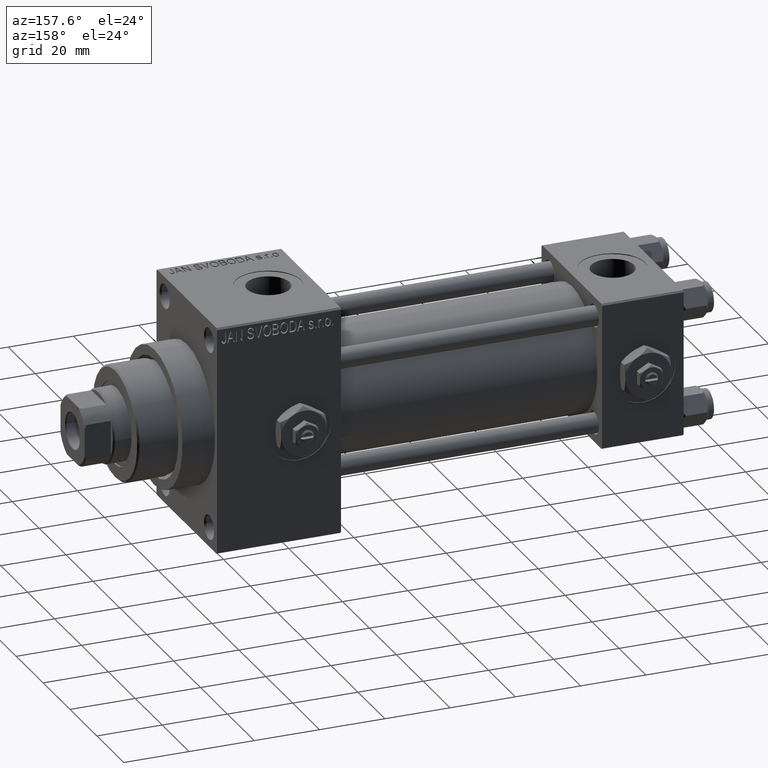
[diagram: clean part render]
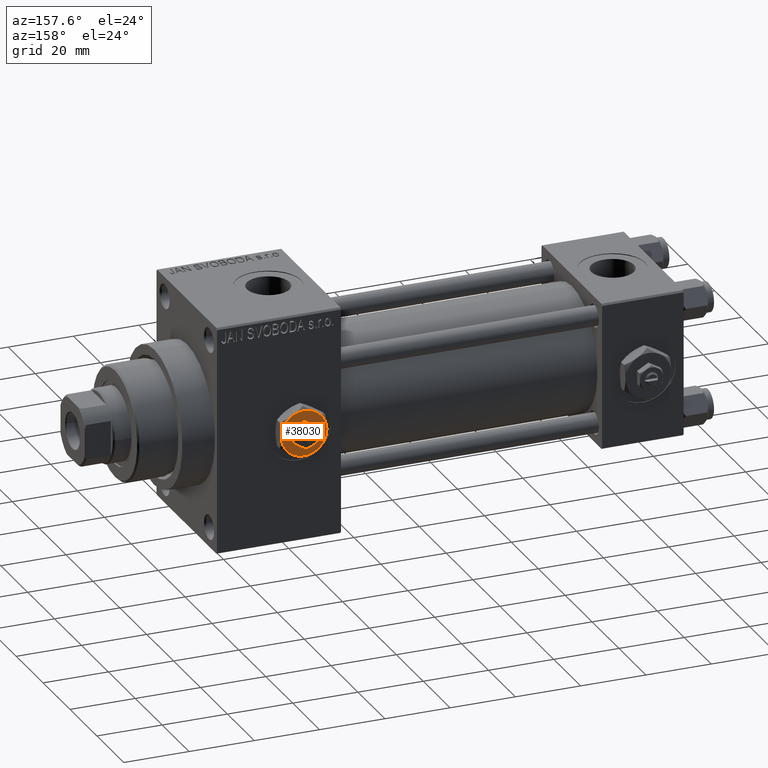
[diagram: same view with one face highlighted and labeled with its STEP entity id]
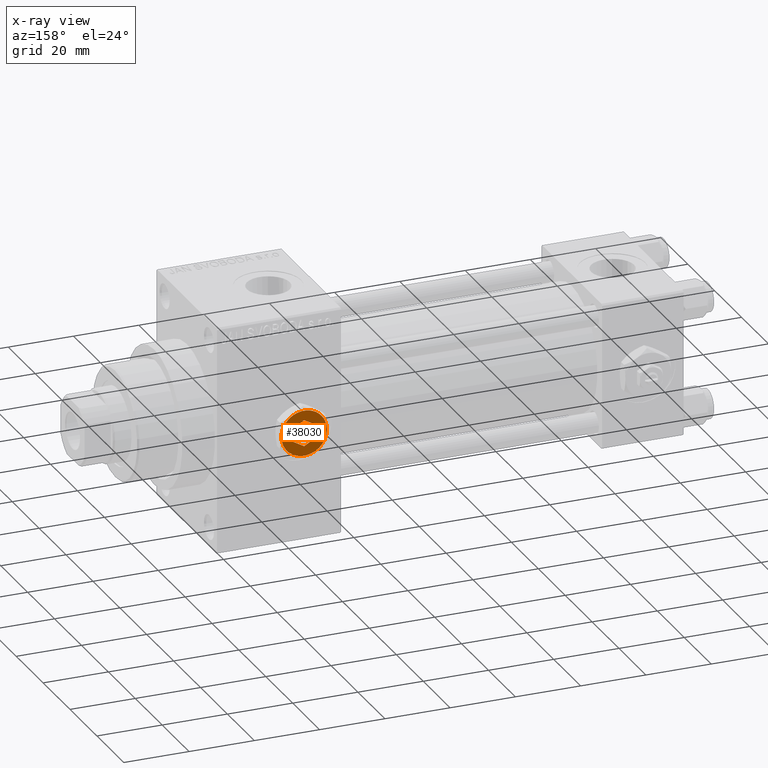
[diagram: x-ray of the same camera — body ghosted, the highlighted face saturated]
A machine part, auxiliary view. The second image highlights one B-rep face of the part: STEP entity #38030.
The next image is the same camera in x-ray: the body ghosted, the highlighted face saturated — about 0% of this face is hidden behind the body in this view.
In plain terms, the highlighted planar face has unit normal (0, 1, 0).
Its self-contained STEP definition (entity closure, byte-faithful):
#200 = CARTESIAN_POINT ( 'NONE',  ( 0.000000000000000000, 0.000000000000000000, 4.299999999999999822 ) ) ;
#695 = ORIENTED_EDGE ( 'NONE', *, *, #7485, .T. ) ;
#1100 = FACE_BOUND ( 'NONE', #29888, .T. ) ;
#1675 = ORIENTED_EDGE ( 'NONE', *, *, #11817, .F. ) ;
#2493 = CARTESIAN_POINT ( 'NONE',  ( -2.443687887572056883E-16, -4.041451884327378785, 4.299999999999999822 ) ) ;
#2907 = VERTEX_POINT ( 'NONE', #25860 ) ;
#3444 = CARTESIAN_POINT ( 'NONE',  ( 0.000000000000000000, 0.000000000000000000, 4.299999999999999822 ) ) ;
#3728 = DIRECTION ( 'NONE',  ( 1.000000000000000000, 0.000000000000000000, 0.000000000000000000 ) ) ;
#4688 = EDGE_CURVE ( 'NONE', #26411, #36594, #41132, .T. ) ;
#4841 = DIRECTION ( 'NONE',  ( 0.000000000000000000, 0.000000000000000000, 1.000000000000000000 ) ) ;
#5230 = VERTEX_POINT ( 'NONE', #39928 ) ;
#5287 = VERTEX_POINT ( 'NONE', #10333 ) ;
#5317 = PLANE ( 'NONE',  #8794 ) ;
#6237 = DIRECTION ( 'NONE',  ( -3.219245568722483357E-16, 1.000000000000000000, 0.000000000000000000 ) ) ;
#6542 = DIRECTION ( 'NONE',  ( 1.000000000000000000, 0.000000000000000000, 0.000000000000000000 ) ) ;
#6575 = EDGE_CURVE ( 'NONE', #22131, #26411, #35531, .T. ) ;
#6591 = DIRECTION ( 'NONE',  ( 0.8660254037844385966, -0.4999999999999998890, 0.000000000000000000 ) ) ;
#7165 = DIRECTION ( 'NONE',  ( 1.000000000000000000, 0.000000000000000000, 0.000000000000000000 ) ) ;
#7485 = EDGE_CURVE ( 'NONE', #36594, #5287, #19706, .T. ) ;
#8082 = DIRECTION ( 'NONE',  ( 1.000000000000000000, 0.000000000000000000, 0.000000000000000000 ) ) ;
#8204 = CARTESIAN_POINT ( 'NONE',  ( -3.500000000000000888, 6.062177826491073063, 4.299999999999999822 ) ) ;
#8273 = LINE ( 'NONE', #23431, #31926 ) ;
#8399 = EDGE_CURVE ( 'NONE', #11105, #24063, #48303, .T. ) ;
#8466 = ORIENTED_EDGE ( 'NONE', *, *, #4688, .T. ) ;
#8794 = AXIS2_PLACEMENT_3D ( 'NONE', #24206, #9291, #27935 ) ;
#9291 = DIRECTION ( 'NONE',  ( 0.000000000000000000, 0.000000000000000000, 1.000000000000000000 ) ) ;
#10152 = ORIENTED_EDGE ( 'NONE', *, *, #34981, .F. ) ;
#10218 = CARTESIAN_POINT ( 'NONE',  ( 3.499999999999999556, -2.020725942163690281, 4.299999999999999822 ) ) ;
#10333 = CARTESIAN_POINT ( 'NONE',  ( -7.000000000000001776, -2.253471898105739040E-15, 4.299999999999999822 ) ) ;
#10894 = DIRECTION ( 'NONE',  ( 0.000000000000000000, 0.000000000000000000, 1.000000000000000000 ) ) ;
#11105 = VERTEX_POINT ( 'NONE', #36139 ) ;
#11817 = EDGE_CURVE ( 'NONE', #30730, #26893, #22030, .T. ) ;
#11939 = ORIENTED_EDGE ( 'NONE', *, *, #17105, .F. ) ;
#11990 = LINE ( 'NONE', #14989, #36821 ) ;
#12253 = CARTESIAN_POINT ( 'NONE',  ( 6.999999999999994671, 3.004629197474313724E-15, 4.299999999999999822 ) ) ;
#12625 = CARTESIAN_POINT ( 'NONE',  ( 3.500000000000000888, -6.062177826491073951, 4.299999999999999822 ) ) ;
#12804 = LINE ( 'NONE', #39404, #21813 ) ;
#13027 = CARTESIAN_POINT ( 'NONE',  ( 0.000000000000000000, 0.000000000000000000, 4.299999999999999822 ) ) ;
#14131 = AXIS2_PLACEMENT_3D ( 'NONE', #48304, #25421, #6542 ) ;
#14979 = AXIS2_PLACEMENT_3D ( 'NONE', #3444, #22818, #19101 ) ;
#14989 = CARTESIAN_POINT ( 'NONE',  ( 3.499999999999998224, 2.020725942163691613, 4.299999999999999822 ) ) ;
#15481 = DIRECTION ( 'NONE',  ( -0.8660254037844387076, 0.4999999999999998335, 0.000000000000000000 ) ) ;
#15895 = VECTOR ( 'NONE', #37186, 1000.000000000000000 ) ;
#15987 = CARTESIAN_POINT ( 'NONE',  ( -3.499999999999999112, 2.020725942163690725, 4.299999999999999822 ) ) ;
#16625 = ORIENTED_EDGE ( 'NONE', *, *, #20862, .T. ) ;
#17033 = DIRECTION ( 'NONE',  ( 1.000000000000000000, 0.000000000000000000, 0.000000000000000000 ) ) ;
#17105 = EDGE_CURVE ( 'NONE', #2907, #30730, #8273, .T. ) ;
#18048 = CARTESIAN_POINT ( 'NONE',  ( -3.499999999999999112, 2.020725942163690725, 4.299999999999999822 ) ) ;
#18108 = VERTEX_POINT ( 'NONE', #2493 ) ;
#18340 = CIRCLE ( 'NONE', #24675, 7.000000000000001776 ) ;
#18657 = CARTESIAN_POINT ( 'NONE',  ( 3.500000000000000000, -2.020725942163690281, 4.299999999999999822 ) ) ;
#19101 = DIRECTION ( 'NONE',  ( 1.000000000000000000, 0.000000000000000000, 0.000000000000000000 ) ) ;
#19234 = VECTOR ( 'NONE', #6237, 1000.000000000000000 ) ;
#19706 = CIRCLE ( 'NONE', #21296, 7.000000000000001776 ) ;
#20014 = CIRCLE ( 'NONE', #27178, 7.000000000000001776 ) ;
#20862 = EDGE_CURVE ( 'NONE', #24063, #22131, #20014, .T. ) ;
#21296 = AXIS2_PLACEMENT_3D ( 'NONE', #200, #10894, #7165 ) ;
#21813 = VECTOR ( 'NONE', #23990, 1000.000000000000114 ) ;
#22030 = LINE ( 'NONE', #18048, #15895 ) ;
#22131 = VERTEX_POINT ( 'NONE', #12253 ) ;
#22818 = DIRECTION ( 'NONE',  ( 0.000000000000000000, 0.000000000000000000, 1.000000000000000000 ) ) ;
#23431 = CARTESIAN_POINT ( 'NONE',  ( 0.000000000000000000, 4.041451884327380562, 4.299999999999999822 ) ) ;
#23813 = CARTESIAN_POINT ( 'NONE',  ( 3.500000000000000444, 6.062177826491073063, 4.299999999999999822 ) ) ;
#23990 = DIRECTION ( 'NONE',  ( 0.8660254037844388186, 0.4999999999999996669, 0.000000000000000000 ) ) ;
#24063 = VERTEX_POINT ( 'NONE', #12625 ) ;
#24206 = CARTESIAN_POINT ( 'NONE',  ( 0.000000000000000000, 0.000000000000000000, 4.299999999999999822 ) ) ;
#24675 = AXIS2_PLACEMENT_3D ( 'NONE', #39413, #39650, #17033 ) ;
#25421 = DIRECTION ( 'NONE',  ( 0.000000000000000000, 0.000000000000000000, 1.000000000000000000 ) ) ;
#25860 = CARTESIAN_POINT ( 'NONE',  ( 0.000000000000000000, 4.041451884327380562, 4.299999999999999822 ) ) ;
#26233 = EDGE_LOOP ( 'NONE', ( #16625, #43795, #8466, #695, #30560, #38572 ) ) ;
#26411 = VERTEX_POINT ( 'NONE', #23813 ) ;
#26811 = EDGE_CURVE ( 'NONE', #18108, #46898, #12804, .T. ) ;
#26893 = VERTEX_POINT ( 'NONE', #45277 ) ;
#27178 = AXIS2_PLACEMENT_3D ( 'NONE', #13027, #4841, #8082 ) ;
#27646 = AXIS2_PLACEMENT_3D ( 'NONE', #41515, #48987, #3728 ) ;
#27935 = DIRECTION ( 'NONE',  ( 1.000000000000000000, 0.000000000000000000, -0.000000000000000000 ) ) ;
#29888 = EDGE_LOOP ( 'NONE', ( #11939, #40894, #34653, #38192, #10152, #1675 ) ) ;
#30180 = LINE ( 'NONE', #45355, #46789 ) ;
#30560 = ORIENTED_EDGE ( 'NONE', *, *, #43022, .T. ) ;
#30730 = VERTEX_POINT ( 'NONE', #15987 ) ;
#31926 = VECTOR ( 'NONE', #41351, 1000.000000000000227 ) ;
#34653 = ORIENTED_EDGE ( 'NONE', *, *, #44480, .F. ) ;
#34981 = EDGE_CURVE ( 'NONE', #26893, #18108, #30180, .T. ) ;
#35381 = FACE_OUTER_BOUND ( 'NONE', #26233, .T. ) ;
#35531 = CIRCLE ( 'NONE', #14131, 7.000000000000001776 ) ;
#36139 = CARTESIAN_POINT ( 'NONE',  ( -3.500000000000000000, -6.062177826491073063, 4.299999999999999822 ) ) ;
#36594 = VERTEX_POINT ( 'NONE', #8204 ) ;
#36821 = VECTOR ( 'NONE', #15481, 1000.000000000000114 ) ;
#37186 = DIRECTION ( 'NONE',  ( 1.073081856240828196E-16, -1.000000000000000000, 0.000000000000000000 ) ) ;
#38030 = ADVANCED_FACE ( 'NONE', ( #35381, #1100 ), #5317, .T. ) ;
#38192 = ORIENTED_EDGE ( 'NONE', *, *, #26811, .F. ) ;
#38572 = ORIENTED_EDGE ( 'NONE', *, *, #8399, .T. ) ;
#39404 = CARTESIAN_POINT ( 'NONE',  ( -2.443687887572056883E-16, -4.041451884327378785, 4.299999999999999822 ) ) ;
#39413 = CARTESIAN_POINT ( 'NONE',  ( 0.000000000000000000, 0.000000000000000000, 4.299999999999999822 ) ) ;
#39650 = DIRECTION ( 'NONE',  ( 0.000000000000000000, 0.000000000000000000, 1.000000000000000000 ) ) ;
#39928 = CARTESIAN_POINT ( 'NONE',  ( 3.499999999999998224, 2.020725942163691613, 4.299999999999999822 ) ) ;
#40894 = ORIENTED_EDGE ( 'NONE', *, *, #49051, .F. ) ;
#41132 = CIRCLE ( 'NONE', #27646, 7.000000000000001776 ) ;
#41351 = DIRECTION ( 'NONE',  ( -0.8660254037844385966, -0.4999999999999998890, 0.000000000000000000 ) ) ;
#41515 = CARTESIAN_POINT ( 'NONE',  ( 0.000000000000000000, 0.000000000000000000, 4.299999999999999822 ) ) ;
#43022 = EDGE_CURVE ( 'NONE', #5287, #11105, #18340, .T. ) ;
#43795 = ORIENTED_EDGE ( 'NONE', *, *, #6575, .T. ) ;
#44480 = EDGE_CURVE ( 'NONE', #46898, #5230, #47506, .T. ) ;
#45277 = CARTESIAN_POINT ( 'NONE',  ( -3.499999999999998668, -2.020725942163689837, 4.299999999999999822 ) ) ;
#45355 = CARTESIAN_POINT ( 'NONE',  ( -3.499999999999998668, -2.020725942163689837, 4.299999999999999822 ) ) ;
#46789 = VECTOR ( 'NONE', #6591, 1000.000000000000227 ) ;
#46898 = VERTEX_POINT ( 'NONE', #18657 ) ;
#47506 = LINE ( 'NONE', #10218, #19234 ) ;
#48303 = CIRCLE ( 'NONE', #14979, 7.000000000000001776 ) ;
#48304 = CARTESIAN_POINT ( 'NONE',  ( 0.000000000000000000, 0.000000000000000000, 4.299999999999999822 ) ) ;
#48987 = DIRECTION ( 'NONE',  ( 0.000000000000000000, 0.000000000000000000, 1.000000000000000000 ) ) ;
#49051 = EDGE_CURVE ( 'NONE', #5230, #2907, #11990, .T. ) ;